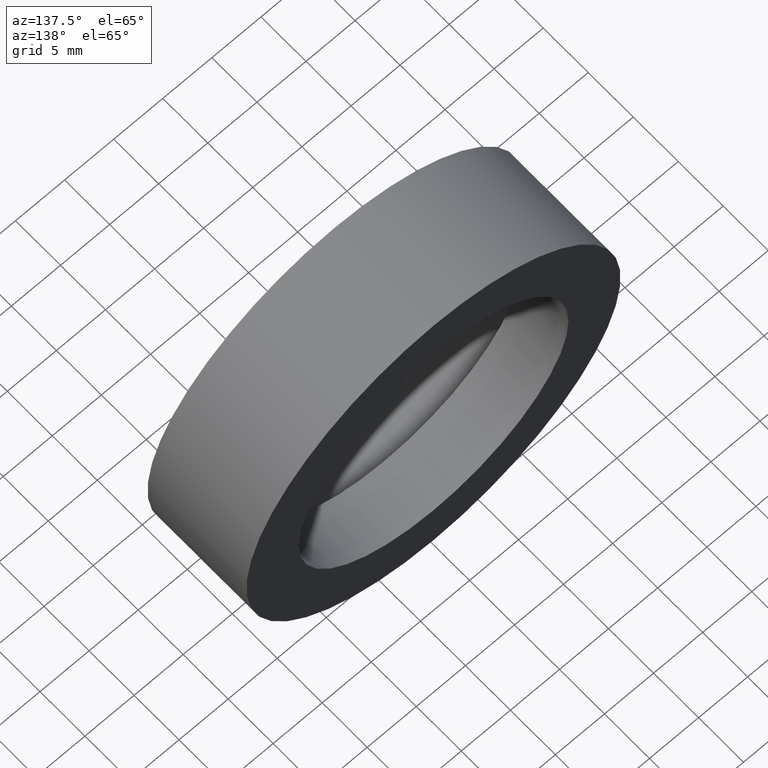
[diagram: clean part render]
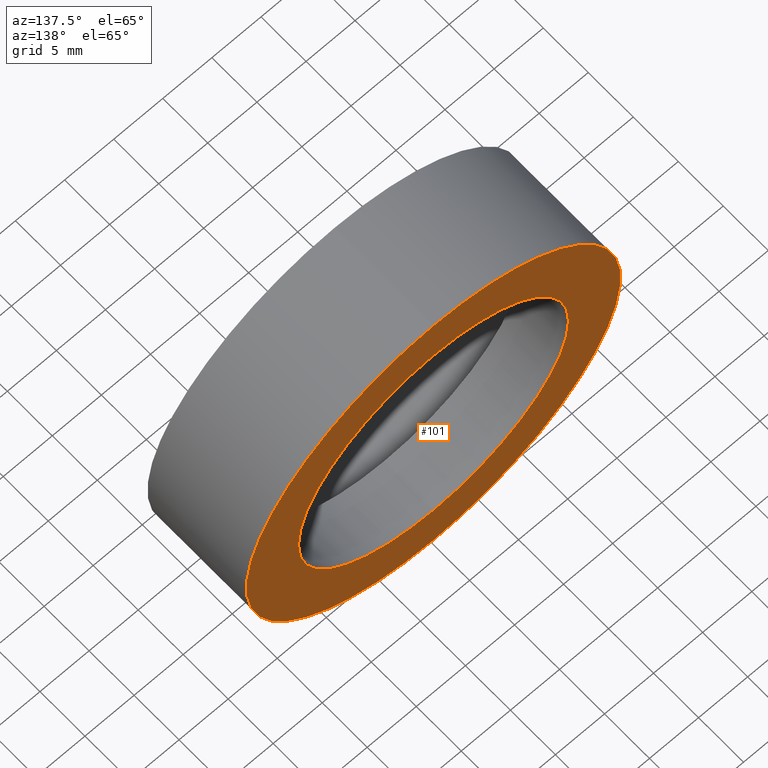
[diagram: same view with one face highlighted and labeled with its STEP entity id]
A machine part, auxiliary view. The second image highlights one B-rep face of the part: STEP entity #101.
In plain terms, the highlighted planar face has unit normal (0, -1, 0).
Its self-contained STEP definition (entity closure, byte-faithful):
#2 = CIRCLE ( 'NONE', #152, 13.75000000000000700 ) ;
#11 = DIRECTION ( 'NONE',  ( -0.0000000000000000000, 1.000000000000000000, -0.0000000000000000000 ) ) ;
#25 = AXIS2_PLACEMENT_3D ( 'NONE', #166, #159, #422 ) ;
#26 = CARTESIAN_POINT ( 'NONE',  ( 0.0000000000000000000, 10.99999999999999600, 0.0000000000000000000 ) ) ;
#33 = CARTESIAN_POINT ( 'NONE',  ( 0.0000000000000000000, 10.99999999999999600, 0.0000000000000000000 ) ) ;
#57 = CARTESIAN_POINT ( 'NONE',  ( 1.683889348827611800E-015, 10.99999999999999600, -13.75000000000000900 ) ) ;
#58 = VERTEX_POINT ( 'NONE', #57 ) ;
#63 = DIRECTION ( 'NONE',  ( 0.0000000000000000000, 0.0000000000000000000, 1.000000000000000000 ) ) ;
#85 = CARTESIAN_POINT ( 'NONE',  ( 2.332952152375708400E-015, 10.99999999999999600, -19.05000000000000400 ) ) ;
#91 = PLANE ( 'NONE',  #25 ) ;
#99 = CIRCLE ( 'NONE', #138, 13.75000000000000700 ) ;
#101 = ADVANCED_FACE ( 'NONE', ( #192, #234 ), #91, .F. ) ;
#109 = AXIS2_PLACEMENT_3D ( 'NONE', #292, #427, #364 ) ;
#116 = DIRECTION ( 'NONE',  ( 0.0000000000000000000, 0.0000000000000000000, 1.000000000000000000 ) ) ;
#123 = EDGE_LOOP ( 'NONE', ( #239, #206 ) ) ;
#127 = DIRECTION ( 'NONE',  ( -0.0000000000000000000, 1.000000000000000000, -0.0000000000000000000 ) ) ;
#138 = AXIS2_PLACEMENT_3D ( 'NONE', #378, #127, #63 ) ;
#149 = ORIENTED_EDGE ( 'NONE', *, *, #299, .F. ) ;
#152 = AXIS2_PLACEMENT_3D ( 'NONE', #26, #11, #116 ) ;
#155 = VERTEX_POINT ( 'NONE', #85 ) ;
#159 = DIRECTION ( 'NONE',  ( 0.0000000000000000000, -1.000000000000000000, 0.0000000000000000000 ) ) ;
#166 = CARTESIAN_POINT ( 'NONE',  ( 13.75000000000000700, 10.99999999999999800, 0.0000000000000000000 ) ) ;
#168 = ORIENTED_EDGE ( 'NONE', *, *, #176, .F. ) ;
#175 = DIRECTION ( 'NONE',  ( 0.0000000000000000000, 0.0000000000000000000, 1.000000000000000000 ) ) ;
#176 = EDGE_CURVE ( 'NONE', #269, #58, #99, .T. ) ;
#183 = CIRCLE ( 'NONE', #109, 19.05000000000000400 ) ;
#192 = FACE_BOUND ( 'NONE', #434, .T. ) ;
#195 = EDGE_CURVE ( 'NONE', #383, #155, #183, .T. ) ;
#206 = ORIENTED_EDGE ( 'NONE', *, *, #314, .T. ) ;
#231 = CARTESIAN_POINT ( 'NONE',  ( 0.0000000000000000000, 10.99999999999999600, 19.05000000000000400 ) ) ;
#234 = FACE_OUTER_BOUND ( 'NONE', #123, .T. ) ;
#239 = ORIENTED_EDGE ( 'NONE', *, *, #195, .T. ) ;
#269 = VERTEX_POINT ( 'NONE', #375 ) ;
#276 = AXIS2_PLACEMENT_3D ( 'NONE', #33, #324, #175 ) ;
#292 = CARTESIAN_POINT ( 'NONE',  ( 0.0000000000000000000, 10.99999999999999600, 0.0000000000000000000 ) ) ;
#299 = EDGE_CURVE ( 'NONE', #58, #269, #2, .T. ) ;
#305 = CIRCLE ( 'NONE', #276, 19.05000000000000400 ) ;
#314 = EDGE_CURVE ( 'NONE', #155, #383, #305, .T. ) ;
#324 = DIRECTION ( 'NONE',  ( -0.0000000000000000000, 1.000000000000000000, -0.0000000000000000000 ) ) ;
#364 = DIRECTION ( 'NONE',  ( 0.0000000000000000000, 0.0000000000000000000, 1.000000000000000000 ) ) ;
#375 = CARTESIAN_POINT ( 'NONE',  ( 0.0000000000000000000, 10.99999999999999600, 13.75000000000000700 ) ) ;
#378 = CARTESIAN_POINT ( 'NONE',  ( 0.0000000000000000000, 10.99999999999999600, 0.0000000000000000000 ) ) ;
#383 = VERTEX_POINT ( 'NONE', #231 ) ;
#422 = DIRECTION ( 'NONE',  ( 0.0000000000000000000, -0.0000000000000000000, -1.000000000000000000 ) ) ;
#427 = DIRECTION ( 'NONE',  ( -0.0000000000000000000, 1.000000000000000000, -0.0000000000000000000 ) ) ;
#434 = EDGE_LOOP ( 'NONE', ( #168, #149 ) ) ;